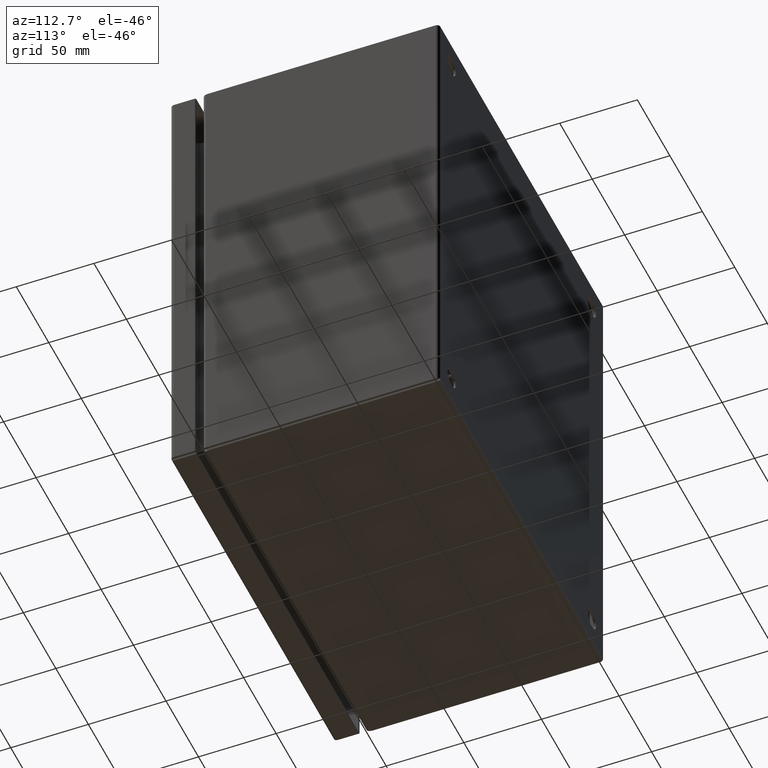
[diagram: clean part render]
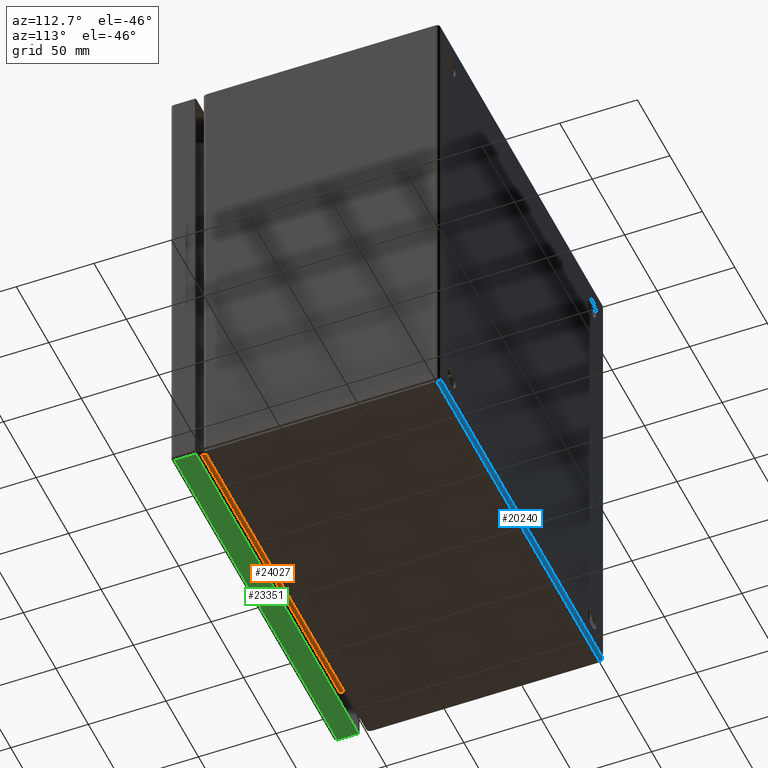
[diagram: same view with three faces highlighted in distinct colors, each labeled with its STEP entity id]
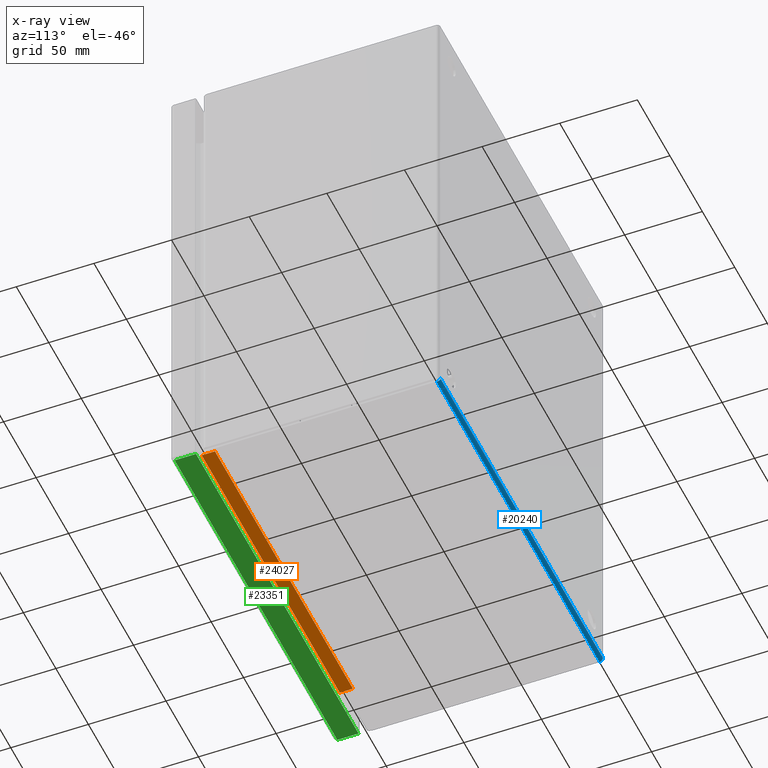
[diagram: x-ray of the same camera — body ghosted, the three highlighted faces saturated]
A machine part, auxiliary view with three faces highlighted in distinct colors.
The next image is the same camera in x-ray (body ghosted, the three faces saturated) — at least one of them is partly hidden behind the body in this view.
Their STEP definitions:

[orange] entity #24027 — the highlighted planar face has unit normal (0, -0, 1).
#316 = DIRECTION ( 'NONE',  ( 1.000000000000000000, 1.105627093058408917E-32, -3.172739855888120152E-17 ) ) ;
#521 = LINE ( 'NONE', #15661, #12976 ) ;
#761 = VERTEX_POINT ( 'NONE', #16861 ) ;
#938 = DIRECTION ( 'NONE',  ( 0.2194667434998580913, 0.9756199816001963621, 0.0000000000000000000 ) ) ;
#2919 = ORIENTED_EDGE ( 'NONE', *, *, #15032, .T. ) ;
#3059 = VERTEX_POINT ( 'NONE', #23934 ) ;
#3467 = VERTEX_POINT ( 'NONE', #20148 ) ;
#4806 = EDGE_CURVE ( 'NONE', #761, #14498, #13755, .T. ) ;
#6885 = EDGE_CURVE ( 'NONE', #3467, #14498, #9261, .T. ) ;
#9261 = LINE ( 'NONE', #11278, #26850 ) ;
#10227 = VECTOR ( 'NONE', #16707, 39.37007874015748143 ) ;
#11278 = CARTESIAN_POINT ( 'NONE',  ( -34.44150000000000489, -6.363201537686062892, -5.251000000000000334 ) ) ;
#11622 = CARTESIAN_POINT ( 'NONE',  ( 4.182888644601380435, -5.943000000000000504, -5.251000000000001222 ) ) ;
#12976 = VECTOR ( 'NONE', #13226, 39.37007874015748143 ) ;
#13226 = DIRECTION ( 'NONE',  ( 1.000000000000000000, 3.081487911019580102E-33, 1.935571335536650261E-16 ) ) ;
#13338 = EDGE_LOOP ( 'NONE', ( #28133, #14663, #2919, #17550, #25809, #23868 ) ) ;
#13487 = DIRECTION ( 'NONE',  ( 0.2194667434998580913, -0.9756199816001963621, 0.0000000000000000000 ) ) ;
#13755 = LINE ( 'NONE', #20516, #14506 ) ;
#13760 = EDGE_CURVE ( 'NONE', #3467, #14489, #26793, .T. ) ;
#14489 = VERTEX_POINT ( 'NONE', #20402 ) ;
#14498 = VERTEX_POINT ( 'NONE', #18691 ) ;
#14506 = VECTOR ( 'NONE', #13487, 39.37007874015748143 ) ;
#14663 = ORIENTED_EDGE ( 'NONE', *, *, #16194, .F. ) ;
#15032 = EDGE_CURVE ( 'NONE', #16156, #3059, #521, .T. ) ;
#15082 = EDGE_CURVE ( 'NONE', #761, #3059, #21995, .T. ) ;
#15661 = CARTESIAN_POINT ( 'NONE',  ( -4.251706115786102913, -6.028999999999999915, -5.251000000000000334 ) ) ;
#15994 = PLANE ( 'NONE',  #25998 ) ;
#16156 = VERTEX_POINT ( 'NONE', #25205 ) ;
#16194 = EDGE_CURVE ( 'NONE', #16156, #14489, #20891, .T. ) ;
#16707 = DIRECTION ( 'NONE',  ( 0.0000000000000000000, -1.000000000000000000, -3.484770713257609976E-16 ) ) ;
#16861 = CARTESIAN_POINT ( 'NONE',  ( 4.182888644601382211, -6.357955541162440660, -5.251000000000001222 ) ) ;
#17009 = VECTOR ( 'NONE', #938, 39.37007874015748143 ) ;
#17550 = ORIENTED_EDGE ( 'NONE', *, *, #15082, .F. ) ;
#18691 = CARTESIAN_POINT ( 'NONE',  ( 4.184068737050465003, -6.363201537686062892, -5.251000000000001222 ) ) ;
#18734 = DIRECTION ( 'NONE',  ( 3.172739855888120152E-17, -3.484770713257609976E-16, 1.000000000000000000 ) ) ;
#20148 = CARTESIAN_POINT ( 'NONE',  ( -4.184068737050470332, -6.363201537686062892, -5.251000000000001222 ) ) ;
#20395 = DIRECTION ( 'NONE',  ( -0.0000000000000000000, 1.000000000000000000, 3.484770713257609976E-16 ) ) ;
#20402 = CARTESIAN_POINT ( 'NONE',  ( -4.182888644601383987, -6.357955541162440660, -5.251000000000001222 ) ) ;
#20516 = CARTESIAN_POINT ( 'NONE',  ( 4.182888644601376882, -6.357955541162402469, -5.251000000000001222 ) ) ;
#20687 = CARTESIAN_POINT ( 'NONE',  ( -4.253102242354485085, -6.670083874847756888, -5.251000000000001222 ) ) ;
#20891 = LINE ( 'NONE', #27863, #10227 ) ;
#20893 = FACE_OUTER_BOUND ( 'NONE', #13338, .T. ) ;
#21995 = LINE ( 'NONE', #11622, #23090 ) ;
#23090 = VECTOR ( 'NONE', #20395, 39.37007874015748143 ) ;
#23868 = ORIENTED_EDGE ( 'NONE', *, *, #6885, .F. ) ;
#23934 = CARTESIAN_POINT ( 'NONE',  ( 4.182888644601379546, -6.028999999999999915, -5.251000000000001222 ) ) ;
#24027 = ADVANCED_FACE ( 'NONE', ( #20893 ), #15994, .F. ) ;
#25061 = DIRECTION ( 'NONE',  ( 0.0000000000000000000, -1.000000000000000000, -3.484770713257609976E-16 ) ) ;
#25205 = CARTESIAN_POINT ( 'NONE',  ( -4.182888644601379546, -6.028999999999999915, -5.251000000000001222 ) ) ;
#25207 = CARTESIAN_POINT ( 'NONE',  ( -34.44150000000000489, -5.943000000000000504, -5.251000000000000334 ) ) ;
#25809 = ORIENTED_EDGE ( 'NONE', *, *, #4806, .T. ) ;
#25998 = AXIS2_PLACEMENT_3D ( 'NONE', #25207, #18734, #25061 ) ;
#26793 = LINE ( 'NONE', #20687, #17009 ) ;
#26850 = VECTOR ( 'NONE', #316, 39.37007874015748143 ) ;
#27863 = CARTESIAN_POINT ( 'NONE',  ( -4.182888644601380435, -5.943000000000000504, -5.251000000000001222 ) ) ;
#28133 = ORIENTED_EDGE ( 'NONE', *, *, #13760, .T. ) ;

[blue] entity #20240 — the highlighted cylindrical surface (edge-blend (fillet) strip) has radius 2.1844 mm, axis along (-1, 0, 0).
#63 = CARTESIAN_POINT ( 'NONE',  ( -4.932510888671239435, -0.04000207956201271009, -5.986674555816065002 ) ) ;
#110 = VECTOR ( 'NONE', #28050, 39.37007874015748143 ) ;
#332 = EDGE_LOOP ( 'NONE', ( #6452, #11583, #16756, #23602 ) ) ;
#424 = EDGE_CURVE ( 'NONE', #20244, #1588, #4036, .T. ) ;
#593 = CARTESIAN_POINT ( 'NONE',  ( -4.931498855105407308, -0.03607915175170123279, -5.984027915220793581 ) ) ;
#732 = CARTESIAN_POINT ( 'NONE',  ( -4.920110224213313010, -0.004702991528210003630, -5.942049891506701265 ) ) ;
#800 = CARTESIAN_POINT ( 'NONE',  ( 4.931716662117487715, -0.03690730800570338893, -5.984620870425055195 ) ) ;
#870 = CARTESIAN_POINT ( 'NONE',  ( 4.926907916347689209, -0.02032672739767249839, -5.969524960744698738 ) ) ;
#871 = CARTESIAN_POINT ( 'NONE',  ( -4.916566701747576928, -0.0008280807791965025949, -5.925964276814051246 ) ) ;
#946 = CARTESIAN_POINT ( 'NONE',  ( 4.934501136301661539, -0.04812422730440586716, -5.991210270318862108 ) ) ;
#1015 = CARTESIAN_POINT ( 'NONE',  ( -4.928967623415275945, -0.02692070891896830576, -5.976539932787199305 ) ) ;
#1167 = CARTESIAN_POINT ( 'NONE',  ( 4.919315944505629368, -0.003567769146258598697, -5.938513818888038642 ) ) ;
#1168 = CARTESIAN_POINT ( 'NONE',  ( -4.928461298005199609, -0.02524497378921811488, -5.974867288342157856 ) ) ;
#1240 = CARTESIAN_POINT ( 'NONE',  ( 4.930451608949153020, -0.03216947739052690436, -5.981079613735288625 ) ) ;
#1304 = CARTESIAN_POINT ( 'NONE',  ( 4.922099299940619233, -0.008198370855643670463, -5.950664782009933873 ) ) ;
#1382 = CARTESIAN_POINT ( 'NONE',  ( 4.931210668073990000, -0.03498318038116106365, -5.983243655758602841 ) ) ;
#1446 = CARTESIAN_POINT ( 'NONE',  ( 4.921087144817523296, -0.006299321811707057558, -5.946329578321813969 ) ) ;
#1473 = CYLINDRICAL_SURFACE ( 'NONE', #23388, 0.08600000000000011802 ) ;
#1588 = VERTEX_POINT ( 'NONE', #13410 ) ;
#1939 = CARTESIAN_POINT ( 'NONE',  ( -4.939092045488343352, -0.06837222383834942740, -5.998173995435612582 ) ) ;
#2278 = B_SPLINE_CURVE_WITH_KNOTS ( 'NONE', 3,
 ( #8281, #6114, #6678, #17497, #28381, #26471, #13032, #26019, #28235, #15481, #17197, #6253, #1939, #24255, #10474, #19653, #10750, #17064, #28511, #15055, #26315, #12613, #19237, #8570, #11034, #24111, #17357, #15343, #15192, #23966, #4225, #19800, #63, #21411, #13721, #27301, #593, #27579, #14296, #18175, #16429, #11975, #27161, #7786, #1015, #1168, #20761, #2754, #16151, #25219, #25075, #7355, #24923, #9831, #11830, #18606, #18457, #16007, #5047, #14151, #24771, #7212, #16575, #11689, #18752, #2885, #27018, #13858, #22635, #12121, #27448, #3322, #20467, #7657, #7508, #732, #9542, #22905, #18314, #20620, #9986, #5183, #4899, #14007, #22776, #3035, #871, #20905, #5471, #22495, #9690, #23059, #16296, #5333 ),
 .UNSPECIFIED., .F., .F.,
 ( 4, 3, 3, 3, 3, 3, 3, 3, 3, 3, 3, 3, 3, 3, 3, 3, 3, 3, 3, 3, 3, 3, 3, 3, 3, 3, 3, 3, 3, 3, 3, 4 ),
 ( 1.060453927141514007E-16, 0.0001844951828314459071, 0.0002766298559459986193, 0.0003687645292474353684, 0.0004608992026612662067, 0.0006453943884550829681, 0.0007375290616986227791, 0.0008296637348376587279, 0.0009217984080648289292, 0.001013933081202002436, 0.001198428264903406149, 0.001290562938233131033, 0.001382697611612688235, 0.001474832284908181171, 0.001566966958025187108, 0.001751462140588528303, 0.001843596813527110124, 0.001935731486386326828, 0.002027866159390607180, 0.002120000832583630000, 0.002212135505890219529, 0.002396630691484016168, 0.002488765364615700467, 0.002580900037638258517, 0.002673034710755328638, 0.002765169383794123699, 0.002949664567309451431, 0.003041799240533519296, 0.003133933913806324651, 0.003226068586996279179, 0.003318203260010105064, 0.003506976463542390426 ),
 .UNSPECIFIED. ) ;
#2754 = CARTESIAN_POINT ( 'NONE',  ( -4.927955223063523960, -0.02358734991682547716, -5.973178212599528969 ) ) ;
#2885 = CARTESIAN_POINT ( 'NONE',  ( -4.922640523839268312, -0.009310788011471201123, -5.952937957086128939 ) ) ;
#2962 = CARTESIAN_POINT ( 'NONE',  ( 4.931463665095638937, -0.03594524419305330371, -5.983932263091557680 ) ) ;
#3034 = CARTESIAN_POINT ( 'NONE',  ( 4.914000000000001478, -3.407854960573700120E-16, -5.914000000000000590 ) ) ;
#3035 = CARTESIAN_POINT ( 'NONE',  ( -4.916819752619876915, -0.001000788187779510325, -5.927135209862965048 ) ) ;
#3100 = CARTESIAN_POINT ( 'NONE',  ( 4.940827950335107133, -0.07638323869135811572, -5.999468810950942199 ) ) ;
#3321 = CARTESIAN_POINT ( 'NONE',  ( 4.926654903982790046, -0.01956286813100491240, -5.968621490716500944 ) ) ;
#3322 = CARTESIAN_POINT ( 'NONE',  ( -4.921122336788314122, -0.006361330439799577942, -5.946482026553493228 ) ) ;
#3394 = CARTESIAN_POINT ( 'NONE',  ( 4.940574946594591843, -0.07520948093937401824, -5.999320365085965889 ) ) ;
#3463 = CARTESIAN_POINT ( 'NONE',  ( 4.928680354308326628, -0.02596852186181610594, -5.975592380811006521 ) ) ;
#3534 = CARTESIAN_POINT ( 'NONE',  ( 4.941081010078974600, -0.07756029892558151395, -5.999593055704563582 ) ) ;
#4036 = LINE ( 'NONE', #21642, #110 ) ;
#4225 = CARTESIAN_POINT ( 'NONE',  ( -4.933016936408547437, -0.04202324864954706113, -5.987905651615152536 ) ) ;
#4899 = CARTESIAN_POINT ( 'NONE',  ( -4.917578792931556642, -0.001615167390932225212, -5.930631288979199667 ) ) ;
#5047 = CARTESIAN_POINT ( 'NONE',  ( -4.925171982483907307, -0.01537912957499318681, -5.963092691994366312 ) ) ;
#5116 = CARTESIAN_POINT ( 'NONE',  ( 4.936019321616793576, -0.05461950470497611149, -5.994070372267395364 ) ) ;
#5183 = CARTESIAN_POINT ( 'NONE',  ( -4.917831788509698043, -0.001859889578117452768, -5.931788811601493627 ) ) ;
#5261 = CARTESIAN_POINT ( 'NONE',  ( 4.939309851669809959, -0.06936871102091983488, -5.998384832609091610 ) ) ;
#5332 = CARTESIAN_POINT ( 'NONE',  ( 4.929186438229467448, -0.02769143547448459086, -5.977214802878549449 ) ) ;
#5333 = CARTESIAN_POINT ( 'NONE',  ( -4.914000000000001478, 0.0000000000000000000, -5.914000000000000590 ) ) ;
#5400 = CARTESIAN_POINT ( 'NONE',  ( 4.930704612985045365, -0.03310230715086069642, -5.981807330660028121 ) ) ;
#5470 = CARTESIAN_POINT ( 'NONE',  ( 4.926148840644102300, -0.01809157346595368851, -5.966767846323969948 ) ) ;
#5471 = CARTESIAN_POINT ( 'NONE',  ( -4.916060694266262132, -0.0005311890490729639534, -5.923616761308770684 ) ) ;
#5616 = CARTESIAN_POINT ( 'NONE',  ( 4.920328046946043976, -0.005033209454789014034, -5.943013420453814533 ) ) ;
#5690 = CARTESIAN_POINT ( 'NONE',  ( 4.938297812445905599, -0.06475452175501525409, -5.997334444584108581 ) ) ;
#5757 = CARTESIAN_POINT ( 'NONE',  ( 4.921593215751163264, -0.007226475086548701798, -5.948506981506790581 ) ) ;
#5899 = CARTESIAN_POINT ( 'NONE',  ( 4.922858657201318877, -0.009756081365134698299, -5.953855622973254214 ) ) ;
#6114 = CARTESIAN_POINT ( 'NONE',  ( -4.942382320070431767, -0.08363233689756266465, -6.000000000000000888 ) ) ;
#6253 = CARTESIAN_POINT ( 'NONE',  ( -4.939345040962057176, -0.06953021264140103741, -5.998416502249174442 ) ) ;
#6452 = ORIENTED_EDGE ( 'NONE', *, *, #17425, .T. ) ;
#6678 = CARTESIAN_POINT ( 'NONE',  ( -4.941875549666066014, -0.08126275282251037291, -5.999902062295564775 ) ) ;
#7212 = CARTESIAN_POINT ( 'NONE',  ( -4.924159640531580173, -0.01276447620474033783, -5.959146028700049946 ) ) ;
#7325 = CARTESIAN_POINT ( 'NONE',  ( -4.914000000000001478, 0.0000000000000000000, -5.914000000000000590 ) ) ;
#7355 = CARTESIAN_POINT ( 'NONE',  ( -4.926943108530958071, -0.02043309476382084225, -5.969650525044690959 ) ) ;
#7426 = CARTESIAN_POINT ( 'NONE',  ( 4.934248120762119605, -0.04706204291395723466, -5.990689211988573071 ) ) ;
#7507 = CARTESIAN_POINT ( 'NONE',  ( 4.929439454920895081, -0.02856108354787532944, -5.978016955673349564 ) ) ;
#7508 = CARTESIAN_POINT ( 'NONE',  ( -4.920363239669599764, -0.005088874872709391040, -5.943168297312991122 ) ) ;
#7656 = CARTESIAN_POINT ( 'NONE',  ( 4.919822016503722750, -0.004265724286767418223, -5.940775136064215367 ) ) ;
#7657 = CARTESIAN_POINT ( 'NONE',  ( -4.920616309180956272, -0.005497925025664603116, -5.944278964037198243 ) ) ;
#7785 = CARTESIAN_POINT ( 'NONE',  ( 4.920075031724977954, -0.004649466870921605335, -5.941894278259432838 ) ) ;
#7786 = CARTESIAN_POINT ( 'NONE',  ( -4.929474393532754739, -0.02866699226603188627, -5.978144618187441139 ) ) ;
#7820 = CARTESIAN_POINT ( 'NONE',  ( 4.942888644601358905, -0.08600000000000157518, -6.000000000000001776 ) ) ;
#7859 = CARTESIAN_POINT ( 'NONE',  ( 4.942370599636032757, -0.08357752881708009618, -6.000000000000000888 ) ) ;
#7936 = CARTESIAN_POINT ( 'NONE',  ( 4.927921021186119965, -0.02346006721284746646, -5.973079291081079489 ) ) ;
#8010 = CARTESIAN_POINT ( 'NONE',  ( 4.940321942853792336, -0.07403572318607488933, -5.999171919220822602 ) ) ;
#8078 = CARTESIAN_POINT ( 'NONE',  ( 4.925642786303811249, -0.01665884996187591560, -5.964884227991952059 ) ) ;
#8281 = CARTESIAN_POINT ( 'NONE',  ( -4.942888644601397097, -0.08599999999999997924, -6.000000000000000888 ) ) ;
#8570 = CARTESIAN_POINT ( 'NONE',  ( -4.935548443114579520, -0.05257670888139742010, -5.993248238774806502 ) ) ;
#9250 = EDGE_CURVE ( 'NONE', #15279, #24875, #18408, .T. ) ;
#9542 = CARTESIAN_POINT ( 'NONE',  ( -4.919603883304188408, -0.003930752051866537138, -5.939811709614427393 ) ) ;
#9613 = CARTESIAN_POINT ( 'NONE',  ( 4.930957617021249462, -0.03403513691234846122, -5.982535047585666454 ) ) ;
#9689 = CARTESIAN_POINT ( 'NONE',  ( 4.928427346596197189, -0.02513271165789245781, -5.974755026210829989 ) ) ;
#9690 = CARTESIAN_POINT ( 'NONE',  ( -4.915554622156306230, -0.0003070568890500945526, -5.921260819580703050 ) ) ;
#9831 = CARTESIAN_POINT ( 'NONE',  ( -4.926437035652245555, -0.01892038626476079746, -5.967830522609534505 ) ) ;
#9986 = CARTESIAN_POINT ( 'NONE',  ( -4.918084784087745298, -0.002104611765211177130, -5.932946334223354157 ) ) ;
#10016 = CARTESIAN_POINT ( 'NONE',  ( 4.914000000000000590, -0.08600000000000000699, -5.914000000000000590 ) ) ;
#10056 = CARTESIAN_POINT ( 'NONE',  ( 4.937791502340298955, -0.06246024097753424820, -5.996749535275728960 ) ) ;
#10204 = CARTESIAN_POINT ( 'NONE',  ( 4.936778420388058919, -0.05795010849340358206, -5.995297008471825784 ) ) ;
#10267 = CARTESIAN_POINT ( 'NONE',  ( 4.917290557303299003, -0.001364847263926194463, -5.929306556375896875 ) ) ;
#10321 = DIRECTION ( 'NONE',  ( 1.000000000000000000, 0.0000000000000000000, 0.0000000000000000000 ) ) ;
#10438 = DIRECTION ( 'NONE',  ( -1.000000000000000000, 0.0000000000000000000, 0.0000000000000000000 ) ) ;
#10474 = CARTESIAN_POINT ( 'NONE',  ( -4.938079025870382388, -0.06375561984610790545, -5.997107119905392025 ) ) ;
#10750 = CARTESIAN_POINT ( 'NONE',  ( -4.937319692203726795, -0.06035215646011251461, -5.996094992923358014 ) ) ;
#11034 = CARTESIAN_POINT ( 'NONE',  ( -4.935295428850241528, -0.05149301849324535579, -5.992773524913467043 ) ) ;
#11583 = ORIENTED_EDGE ( 'NONE', *, *, #9250, .T. ) ;
#11689 = CARTESIAN_POINT ( 'NONE',  ( -4.923146596143592291, -0.01041832389437612715, -5.955029382606428001 ) ) ;
#11829 = CARTESIAN_POINT ( 'NONE',  ( 4.916278507549214360, -0.0006591433862859360192, -5.924627238231898296 ) ) ;
#11830 = CARTESIAN_POINT ( 'NONE',  ( -4.926184031616353209, -0.01819266934002206418, -5.966897692849203239 ) ) ;
#11900 = CARTESIAN_POINT ( 'NONE',  ( 4.942888644601358905, -0.08600000000000157518, -6.000000000000001776 ) ) ;
#11974 = CARTESIAN_POINT ( 'NONE',  ( 4.916025503409341191, -0.0005129437968024168782, -5.923453198661988495 ) ) ;
#11975 = CARTESIAN_POINT ( 'NONE',  ( -4.930233740618604976, -0.03137850928354721236, -5.980437131869034140 ) ) ;
#12003 = FACE_OUTER_BOUND ( 'NONE', #332, .T. ) ;
#12048 = CARTESIAN_POINT ( 'NONE',  ( 4.940068891981489685, -0.07286479013715947695, -5.998999211812243715 ) ) ;
#12120 = CARTESIAN_POINT ( 'NONE',  ( 4.914506324530986348, 0.0000000000000000000, -5.916367663102439778 ) ) ;
#12121 = CARTESIAN_POINT ( 'NONE',  ( -4.921628408191789816, -0.007292648443485897844, -5.948657651549972059 ) ) ;
#12408 = CARTESIAN_POINT ( 'NONE',  ( 4.917796599113072986, -0.001826004564389542041, -5.931627776161668919 ) ) ;
#12613 = CARTESIAN_POINT ( 'NONE',  ( -4.936054513983986425, -0.05477277690464347343, -5.994130272293015871 ) ) ;
#13032 = CARTESIAN_POINT ( 'NONE',  ( -4.940610137052203754, -0.07537276176811304185, -5.999340856613715189 ) ) ;
#13410 = CARTESIAN_POINT ( 'NONE',  ( -4.942888644601397097, -0.08599999999999997924, -6.000000000000000888 ) ) ;
#13721 = CARTESIAN_POINT ( 'NONE',  ( -4.932004897959869183, -0.03802028541035503556, -5.985381697483171948 ) ) ;
#13858 = CARTESIAN_POINT ( 'NONE',  ( -4.922134492760378066, -0.008268671351299102662, -5.950813588306061774 ) ) ;
#13935 = CARTESIAN_POINT ( 'NONE',  ( 4.941334022445061258, -0.07873918041942953860, -5.999692943110959575 ) ) ;
#14004 = EDGE_CURVE ( 'NONE', #24875, #20244, #28214, .T. ) ;
#14007 = CARTESIAN_POINT ( 'NONE',  ( -4.917325746644984008, -0.001394291448096835655, -5.929468478505484974 ) ) ;
#14083 = CARTESIAN_POINT ( 'NONE',  ( 4.939815894968997867, -0.07169815581618071976, -5.998802460182133700 ) ) ;
#14151 = CARTESIAN_POINT ( 'NONE',  ( -4.924918936357855159, -0.01471024278550931916, -5.962116216227148158 ) ) ;
#14295 = CARTESIAN_POINT ( 'NONE',  ( 4.915013094935351212, -9.793770443780811506E-05, -5.918737247177494609 ) ) ;
#14296 = CARTESIAN_POINT ( 'NONE',  ( -4.930992807593075788, -0.03416637428792664716, -5.982634357205649067 ) ) ;
#14367 = CARTESIAN_POINT ( 'NONE',  ( 4.935766307813064913, -0.05351797344660397249, -5.993638669560240828 ) ) ;
#14433 = CARTESIAN_POINT ( 'NONE',  ( 4.924377755930155587, -0.01332544418396329131, -5.959997920438030228 ) ) ;
#14499 = CARTESIAN_POINT ( 'NONE',  ( 4.929945536070439616, -0.03034947495536586756, -5.979566905236230134 ) ) ;
#14572 = CARTESIAN_POINT ( 'NONE',  ( 4.922352315695217584, -0.008717395721017670226, -5.951727961459084781 ) ) ;
#14709 = CARTESIAN_POINT ( 'NONE',  ( 4.923365398341666754, -0.01088362431882188702, -5.955942054646449435 ) ) ;
#15055 = CARTESIAN_POINT ( 'NONE',  ( -4.936560597655366145, -0.05698657954621424299, -5.994966790545219304 ) ) ;
#15192 = CARTESIAN_POINT ( 'NONE',  ( -4.934029987400077921, -0.04614437702678566428, -5.990243918634885034 ) ) ;
#15279 = VERTEX_POINT ( 'NONE', #7325 ) ;
#15343 = CARTESIAN_POINT ( 'NONE',  ( -4.934536328906180991, -0.04827203854095340335, -5.991282604279000168 ) ) ;
#15481 = CARTESIAN_POINT ( 'NONE',  ( -4.939851084502257628, -0.07186045225531444147, -5.998829671634256400 ) ) ;
#16007 = CARTESIAN_POINT ( 'NONE',  ( -4.925424979505756973, -0.01606773690849072622, -5.964054755807014274 ) ) ;
#16151 = CARTESIAN_POINT ( 'NONE',  ( -4.927702206371931126, -0.02278519712149972010, -5.972308564525569352 ) ) ;
#16222 = CARTESIAN_POINT ( 'NONE',  ( 4.934754151841006298, -0.04918641169402748065, -5.991731328648744359 ) ) ;
#16295 = CARTESIAN_POINT ( 'NONE',  ( 4.925895837008318345, -0.01736564279438946104, -5.965833625712121169 ) ) ;
#16296 = CARTESIAN_POINT ( 'NONE',  ( -4.914518044965315191, 0.0000000000000000000, -5.916422471182967158 ) ) ;
#16359 = CARTESIAN_POINT ( 'NONE',  ( 4.931969708243540751, -0.03788378377292324350, -5.985289757214537154 ) ) ;
#16428 = CARTESIAN_POINT ( 'NONE',  ( 4.916531511689396616, -0.0008053429759486226049, -5.925801277803245171 ) ) ;
#16429 = CARTESIAN_POINT ( 'NONE',  ( -4.930486800321796537, -0.03229793306529018387, -5.981182495863346382 ) ) ;
#16495 = CARTESIAN_POINT ( 'NONE',  ( 4.941852078095951839, -0.08115300006415313017, -5.999897467641265969 ) ) ;
#16575 = CARTESIAN_POINT ( 'NONE',  ( -4.923652922110923313, -0.01154790230740029844, -5.957110218932142764 ) ) ;
#16651 = CARTESIAN_POINT ( 'NONE',  ( 4.933995056446137895, -0.04601039857575230790, -5.990146119528271917 ) ) ;
#16721 = CARTESIAN_POINT ( 'NONE',  ( 4.929692523347785738, -0.02944746828721058265, -5.978801318626708827 ) ) ;
#16756 = ORIENTED_EDGE ( 'NONE', *, *, #14004, .T. ) ;
#17064 = CARTESIAN_POINT ( 'NONE',  ( -4.937066628097688259, -0.05922486393581120889, -5.995734275713239469 ) ) ;
#17197 = CARTESIAN_POINT ( 'NONE',  ( -4.939598087298119111, -0.07069344362411855709, -5.998635152736077281 ) ) ;
#17357 = CARTESIAN_POINT ( 'NONE',  ( -4.934789344660781119, -0.04933521799010349984, -5.991801629144373642 ) ) ;
#17425 = EDGE_CURVE ( 'NONE', #1588, #15279, #2278, .T. ) ;
#17497 = CARTESIAN_POINT ( 'NONE',  ( -4.941369214158705780, -0.07890316744707032148, -5.999706679831364298 ) ) ;
#18175 = CARTESIAN_POINT ( 'NONE',  ( -4.930739803957291834, -0.03323215367607820769, -5.981908426534085166 ) ) ;
#18314 = CARTESIAN_POINT ( 'NONE',  ( -4.918590832155461001, -0.002665555415920355022, -5.935245478245097850 ) ) ;
#18390 = CARTESIAN_POINT ( 'NONE',  ( 4.930198548793317315, -0.03125148162432041937, -5.980332491846430010 ) ) ;
#18408 = LINE ( 'NONE', #27251, #26028 ) ;
#18456 = CARTESIAN_POINT ( 'NONE',  ( 4.920581116417445777, -0.005440133602501497252, -5.944124867869517104 ) ) ;
#18457 = CARTESIAN_POINT ( 'NONE',  ( -4.925677976527406798, -0.01675634424144596332, -5.965016819618905508 ) ) ;
#18605 = CARTESIAN_POINT ( 'NONE',  ( 4.916784562895217370, -0.0009758094677173440295, -5.926972539114411909 ) ) ;
#18606 = CARTESIAN_POINT ( 'NONE',  ( -4.925931027580147337, -0.01746495241438242654, -5.965964863087716452 ) ) ;
#18752 = CARTESIAN_POINT ( 'NONE',  ( -4.922893588155250910, -0.009853880471772999763, -5.953989601424332534 ) ) ;
#18882 = CARTESIAN_POINT ( 'NONE',  ( 4.925136792688042497, -0.01528531959626779416, -5.962957468504263225 ) ) ;
#18957 = CARTESIAN_POINT ( 'NONE',  ( 4.938550812510490218, -0.06590095983407283364, -5.997626720189824567 ) ) ;
#18988 = CARTESIAN_POINT ( 'NONE',  ( 4.914000000000001478, -3.407854960573700120E-16, -5.914000000000000590 ) ) ;
#19029 = CARTESIAN_POINT ( 'NONE',  ( 4.925389789495989490, -0.01597208477924076317, -5.963920848248344342 ) ) ;
#19237 = CARTESIAN_POINT ( 'NONE',  ( -4.935801499783882385, -0.05367042167821935855, -5.993700678188305986 ) ) ;
#19653 = CARTESIAN_POINT ( 'NONE',  ( -4.937572700095784306, -0.06148618111198656672, -5.996432230853748990 ) ) ;
#19800 = CARTESIAN_POINT ( 'NONE',  ( -4.932763936471069144, -0.04100652314497755385, -5.987300660200707725 ) ) ;
#20240 = ADVANCED_FACE ( 'NONE', ( #12003 ), #1473, .T. ) ;
#20244 = VERTEX_POINT ( 'NONE', #7820 ) ;
#20467 = CARTESIAN_POINT ( 'NONE',  ( -4.920869322984584571, -0.005929627732644789269, -5.945380495295122358 ) ) ;
#20545 = CARTESIAN_POINT ( 'NONE',  ( 4.935513251078612385, -0.05242512840964603377, -5.993184138156537166 ) ) ;
#20619 = CARTESIAN_POINT ( 'NONE',  ( 4.917037560099159599, -0.001170328365745912716, -5.928139547744699200 ) ) ;
#20620 = CARTESIAN_POINT ( 'NONE',  ( -4.918337832090876383, -0.002373279810202963587, -5.934099040166041839 ) ) ;
#20760 = CARTESIAN_POINT ( 'NONE',  ( 4.917543603639358274, -0.001583497750826771749, -5.930469787358616074 ) ) ;
#20761 = CARTESIAN_POINT ( 'NONE',  ( -4.928208290293069282, -0.02440761918904177721, -5.974031478138235762 ) ) ;
#20904 = CARTESIAN_POINT ( 'NONE',  ( 4.920834130617421032, -0.005869727706996023288, -5.945227223095387536 ) ) ;
#20905 = CARTESIAN_POINT ( 'NONE',  ( -4.916313698006777422, -0.0006796349140515843459, -5.924790519060753269 ) ) ;
#20981 = CARTESIAN_POINT ( 'NONE',  ( 4.932222703527633811, -0.03887344210005686668, -5.985938081295675062 ) ) ;
#21046 = CARTESIAN_POINT ( 'NONE',  ( 4.915772443200193464, -0.0003909515915036512398, -5.922275902939424519 ) ) ;
#21195 = CARTESIAN_POINT ( 'NONE',  ( 4.918302900034708713, -0.002311315314842321035, -5.933945172554658143 ) ) ;
#21411 = CARTESIAN_POINT ( 'NONE',  ( -4.932257893315602715, -0.03901118248637319014, -5.986028126649741488 ) ) ;
#21642 = CARTESIAN_POINT ( 'NONE',  ( 4.914000000000000590, -0.08599999999999997924, -6.000000000000000888 ) ) ;
#22495 = CARTESIAN_POINT ( 'NONE',  ( -4.915807634522392888, -0.0004069442954467565360, -5.922439701074549312 ) ) ;
#22635 = CARTESIAN_POINT ( 'NONE',  ( -4.921881422860677979, -0.007769435043215581170, -5.949740431508915073 ) ) ;
#22709 = CARTESIAN_POINT ( 'NONE',  ( 4.935260236409590995, -0.05134234845012157489, -5.992707351556553874 ) ) ;
#22776 = CARTESIAN_POINT ( 'NONE',  ( -4.917072749632369622, -0.001197539817890504957, -5.928301844183941682 ) ) ;
#22845 = CARTESIAN_POINT ( 'NONE',  ( 4.938803860513621302, -0.06705366577676165341, -5.997895388234815606 ) ) ;
#22905 = CARTESIAN_POINT ( 'NONE',  ( -4.919097142261068534, -0.003250464724302306284, -5.937539759022576469 ) ) ;
#22984 = CARTESIAN_POINT ( 'NONE',  ( 4.936272335420419211, -0.05572103596290246819, -5.994502074974374040 ) ) ;
#23058 = CARTESIAN_POINT ( 'NONE',  ( 4.926401844279597597, -0.01881750413669357191, -5.967702066934757354 ) ) ;
#23059 = CARTESIAN_POINT ( 'NONE',  ( -4.915036566505406768, -0.0001025323587359588533, -5.918846999935936992 ) ) ;
#23133 = CARTESIAN_POINT ( 'NONE',  ( 4.939562897956382592, -0.07053152149463645659, -5.998605708551929538 ) ) ;
#23202 = CARTESIAN_POINT ( 'NONE',  ( 4.924630751285793195, -0.01397187335028772688, -5.960988817513669602 ) ) ;
#23276 = CARTESIAN_POINT ( 'NONE',  ( 4.933235722490468156, -0.04288978106793721323, -5.988452097692646525 ) ) ;
#23339 = CARTESIAN_POINT ( 'NONE',  ( 4.924883746641526727, -0.01461830251685943688, -5.961979714589689117 ) ) ;
#23388 = AXIS2_PLACEMENT_3D ( 'NONE', #10016, #10438, #27618 ) ;
#23602 = ORIENTED_EDGE ( 'NONE', *, *, #424, .T. ) ;
#23966 = CARTESIAN_POINT ( 'NONE',  ( -4.933523246259729156, -0.04405794535359248282, -5.989116375681200033 ) ) ;
#24111 = CARTESIAN_POINT ( 'NONE',  ( -4.935042414586026105, -0.05040932810562406136, -5.992298811052359397 ) ) ;
#24255 = CARTESIAN_POINT ( 'NONE',  ( -4.938585744566706737, -0.06605482744536293749, -5.997688684685161142 ) ) ;
#24771 = CARTESIAN_POINT ( 'NONE',  ( -4.924665941073762099, -0.01406191870437122418, -5.961126557900016110 ) ) ;
#24875 = VERTEX_POINT ( 'NONE', #18988 ) ;
#24923 = CARTESIAN_POINT ( 'NONE',  ( -4.926690095808079484, -0.01966750815362160176, -5.968748518375738499 ) ) ;
#25000 = CARTESIAN_POINT ( 'NONE',  ( 4.939056856091668557, -0.06821118839862416738, -5.998140110421908311 ) ) ;
#25074 = CARTESIAN_POINT ( 'NONE',  ( 4.923871708192847585, -0.01209434838487165320, -5.957976751350495093 ) ) ;
#25075 = CARTESIAN_POINT ( 'NONE',  ( -4.927196121253611949, -0.02119868137334225688, -5.970552531712844946 ) ) ;
#25218 = CARTESIAN_POINT ( 'NONE',  ( 4.924124708130326766, -0.01269933979931770797, -5.958993476855065197 ) ) ;
#25219 = CARTESIAN_POINT ( 'NONE',  ( -4.927449189680502606, -0.02198304432669903261, -5.971438916452179946 ) ) ;
#25300 = CARTESIAN_POINT ( 'NONE',  ( 4.936525404931773053, -0.05683170268711215667, -5.994911125127327267 ) ) ;
#25371 = CARTESIAN_POINT ( 'NONE',  ( 4.915519430442711446, -0.0002933201686380370915, -5.921096832552937173 ) ) ;
#25451 = CARTESIAN_POINT ( 'NONE',  ( 4.937284761297181745, -0.06018829038568034029, -5.996069247948166314 ) ) ;
#25527 = CARTESIAN_POINT ( 'NONE',  ( 4.921340201486825272, -0.006751761225207734626, -5.947423291118636435 ) ) ;
#25673 = CARTESIAN_POINT ( 'NONE',  ( 4.921846230015376911, -0.007701188947656830916, -5.949590671894412708 ) ) ;
#26019 = CARTESIAN_POINT ( 'NONE',  ( -4.940357132912020610, -0.07419872219676615366, -5.999194657024053079 ) ) ;
#26028 = VECTOR ( 'NONE', #10321, 39.37007874015748143 ) ;
#26315 = CARTESIAN_POINT ( 'NONE',  ( -4.936307528183962567, -0.05587513213051226169, -5.994559866397509040 ) ) ;
#26471 = CARTESIAN_POINT ( 'NONE',  ( -4.940863141192076924, -0.07654680133802067854, -5.999487056203197888 ) ) ;
#27018 = CARTESIAN_POINT ( 'NONE',  ( -4.922387508299725489, -0.008789729681182288992, -5.951875772695681910 ) ) ;
#27161 = CARTESIAN_POINT ( 'NONE',  ( -4.929980728253705813, -0.03047503925534976107, -5.979673272602368250 ) ) ;
#27224 = CARTESIAN_POINT ( 'NONE',  ( 4.933742048457797402, -0.04497061739365586230, -5.989581676105670383 ) ) ;
#27251 = CARTESIAN_POINT ( 'NONE',  ( -4.943000000000000504, 0.0000000000000000000, -5.914000000000000590 ) ) ;
#27300 = CARTESIAN_POINT ( 'NONE',  ( 4.928933421537874615, -0.02682178740052412053, -5.976412650083224420 ) ) ;
#27301 = CARTESIAN_POINT ( 'NONE',  ( -4.931751851913353413, -0.03704253149578141252, -5.984714680403764753 ) ) ;
#27447 = CARTESIAN_POINT ( 'NONE',  ( 4.918809618731033062, -0.002892880094614264791, -5.936244380153914868 ) ) ;
#27448 = CARTESIAN_POINT ( 'NONE',  ( -4.921375393522767538, -0.006815861843501368894, -5.947574871590449952 ) ) ;
#27512 = CARTESIAN_POINT ( 'NONE',  ( 4.935007221740705496, -0.05025956849117647202, -5.992230564956824601 ) ) ;
#27578 = CARTESIAN_POINT ( 'NONE',  ( 4.919568952397685990, -0.003905007076649548523, -5.939647843539913374 ) ) ;
#27579 = CARTESIAN_POINT ( 'NONE',  ( -4.931245858297584661, -0.03511577200809463256, -5.983341150038159917 ) ) ;
#27618 = DIRECTION ( 'NONE',  ( 0.0000000000000000000, 0.0000000000000000000, 1.000000000000000000 ) ) ;
#27729 = CARTESIAN_POINT ( 'NONE',  ( 4.927414251068640283, -0.02185538181260265195, -5.971333007734017428 ) ) ;
#27810 = CARTESIAN_POINT ( 'NONE',  ( 4.932729004069813961, -0.04085397130002616645, -5.987235523795304992 ) ) ;
#28050 = DIRECTION ( 'NONE',  ( -1.000000000000000000, 0.0000000000000000000, 0.0000000000000000000 ) ) ;
#28214 = B_SPLINE_CURVE_WITH_KNOTS ( 'NONE', 3,
 ( #3034, #12120, #14295, #25371, #21046, #11974, #11829, #16428, #18605, #20619, #10267, #20760, #12408, #21195, #27447, #1167, #27578, #7656, #7785, #5616, #18456, #20904, #1446, #25527, #5757, #25673, #1304, #14572, #5899, #14709, #25074, #25218, #14433, #23202, #23339, #18882, #19029, #8078, #16295, #5470, #23058, #3321, #870, #27729, #7936, #9689, #3463, #27300, #5332, #7507, #16721, #14499, #18390, #1240, #5400, #9613, #1382, #2962, #800, #16359, #20981, #27810, #23276, #27224, #16651, #7426, #946, #16222, #27512, #22709, #20545, #14367, #5116, #22984, #25300, #10204, #25451, #10056, #5690, #18957, #22845, #25000, #5261, #23133, #14083, #12048, #8010, #3394, #3100, #3534, #13935, #16495, #7859, #11900 ),
 .UNSPECIFIED., .F., .F.,
 ( 4, 3, 3, 3, 3, 3, 3, 3, 3, 3, 3, 3, 3, 3, 3, 3, 3, 3, 3, 3, 3, 3, 3, 3, 3, 3, 3, 3, 3, 3, 3, 4 ),
 ( 1.313459241103341488E-19, 0.0001844951828316165876, 0.0002766298559462695614, 0.0003687645292477687606, 0.0004608992026617103502, 0.0006453943884557081191, 0.0007375290616992845761, 0.0008296637348384256925, 0.0009217984080657211192, 0.001013933081202955232, 0.001198428264904497290, 0.001290562938234313464, 0.001382697611614000987, 0.001474832284909596272, 0.001566966958026658153, 0.001751462140590142030, 0.001843596813528841595, 0.001935731486388123567, 0.002027866159392535759, 0.002120000832585605850, 0.002212135505892261732, 0.002396630691486262201, 0.002488765364617995073, 0.002580900037640607332, 0.002673034710757782838, 0.002765169383796660732, 0.002949664567312099053, 0.003041799240536258424, 0.003133933913809182608, 0.003226068586999240352, 0.003318203260013163382, 0.003506976463542086416 ),
 .UNSPECIFIED. ) ;
#28235 = CARTESIAN_POINT ( 'NONE',  ( -4.940104081706199857, -0.07302746088560076176, -5.999024190532285417 ) ) ;
#28381 = CARTESIAN_POINT ( 'NONE',  ( -4.941116201401223762, -0.07772409706058476531, -5.999609048408498957 ) ) ;
#28511 = CARTESIAN_POINT ( 'NONE',  ( -4.936813612876433055, -0.05810572174059413370, -5.995350533129085946 ) ) ;

[green] entity #23351 — the highlighted planar face has unit normal (0, 0, -1).
#48 = CARTESIAN_POINT ( 'NONE',  ( -4.924921259842525600, -6.775000000000001243, -5.985000000000003872 ) ) ;
#187 = DIRECTION ( 'NONE',  ( 2.835828367125530165E-15, 1.000000000000000000, 0.0000000000000000000 ) ) ;
#1114 = DIRECTION ( 'NONE',  ( 0.0000000000000000000, 6.123031769111889989E-17, -1.000000000000000000 ) ) ;
#5958 = DIRECTION ( 'NONE',  ( 1.000000000000000000, 0.0000000000000000000, 0.0000000000000000000 ) ) ;
#6611 = ORIENTED_EDGE ( 'NONE', *, *, #26446, .T. ) ;
#7309 = DIRECTION ( 'NONE',  ( 0.0000000000000000000, 1.000000000000000000, 6.123031769111889989E-17 ) ) ;
#7413 = ORIENTED_EDGE ( 'NONE', *, *, #24182, .F. ) ;
#7601 = PLANE ( 'NONE',  #15799 ) ;
#10034 = DIRECTION ( 'NONE',  ( 9.452761223751749467E-16, -1.000000000000000000, 0.0000000000000000000 ) ) ;
#11647 = CARTESIAN_POINT ( 'NONE',  ( 4.900999999999995360, -6.775000000000001243, -5.985000000000003872 ) ) ;
#12068 = FACE_OUTER_BOUND ( 'NONE', #22493, .T. ) ;
#12177 = CARTESIAN_POINT ( 'NONE',  ( 4.929921259842513948, -6.196999999999999176, -5.985000000000003872 ) ) ;
#12399 = LINE ( 'NONE', #23745, #24586 ) ;
#12844 = VERTEX_POINT ( 'NONE', #23992 ) ;
#15374 = ORIENTED_EDGE ( 'NONE', *, *, #21482, .T. ) ;
#15618 = VERTEX_POINT ( 'NONE', #22565 ) ;
#15799 = AXIS2_PLACEMENT_3D ( 'NONE', #11647, #1114, #7309 ) ;
#18991 = VECTOR ( 'NONE', #187, 39.37007874015748143 ) ;
#19001 = VERTEX_POINT ( 'NONE', #27125 ) ;
#19196 = CARTESIAN_POINT ( 'NONE',  ( 4.929921259842513948, -6.735999999999995325, -5.985000000000003872 ) ) ;
#19221 = LINE ( 'NONE', #12177, #23283 ) ;
#19795 = VERTEX_POINT ( 'NONE', #19196 ) ;
#21482 = EDGE_CURVE ( 'NONE', #19001, #15618, #21666, .T. ) ;
#21528 = EDGE_CURVE ( 'NONE', #12844, #19001, #24394, .T. ) ;
#21666 = LINE ( 'NONE', #23671, #27789 ) ;
#22493 = EDGE_LOOP ( 'NONE', ( #7413, #23734, #15374, #6611 ) ) ;
#22565 = CARTESIAN_POINT ( 'NONE',  ( 4.929921259842513948, -6.196999999999999176, -5.985000000000003872 ) ) ;
#23283 = VECTOR ( 'NONE', #10034, 39.37007874015748143 ) ;
#23351 = ADVANCED_FACE ( 'NONE', ( #12068 ), #7601, .T. ) ;
#23671 = CARTESIAN_POINT ( 'NONE',  ( -4.896000000000005237, -6.196999999999999176, -5.985000000000003872 ) ) ;
#23734 = ORIENTED_EDGE ( 'NONE', *, *, #21528, .T. ) ;
#23745 = CARTESIAN_POINT ( 'NONE',  ( 4.900999999999995360, -6.735999999999990884, -5.985000000000003872 ) ) ;
#23992 = CARTESIAN_POINT ( 'NONE',  ( -4.924921259842525600, -6.735999999999995325, -5.985000000000002984 ) ) ;
#24182 = EDGE_CURVE ( 'NONE', #12844, #19795, #12399, .T. ) ;
#24394 = LINE ( 'NONE', #48, #18991 ) ;
#24586 = VECTOR ( 'NONE', #28152, 39.37007874015748143 ) ;
#26446 = EDGE_CURVE ( 'NONE', #15618, #19795, #19221, .T. ) ;
#27125 = CARTESIAN_POINT ( 'NONE',  ( -4.924921259842524712, -6.196999999999999176, -5.985000000000003872 ) ) ;
#27789 = VECTOR ( 'NONE', #5958, 39.37007874015748143 ) ;
#28152 = DIRECTION ( 'NONE',  ( 1.000000000000000000, -3.749399456654639914E-33, -6.123233995736769734E-17 ) ) ;